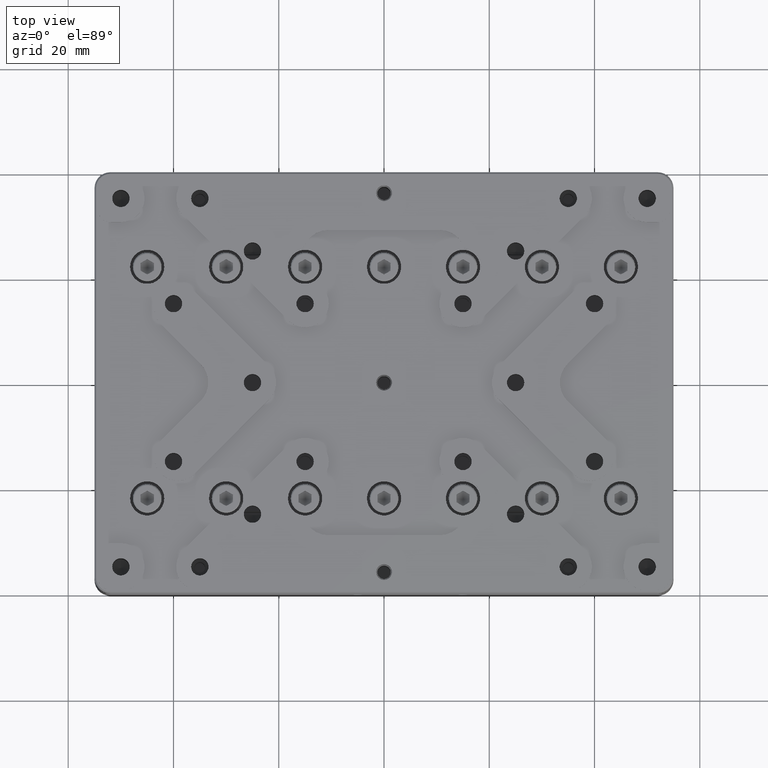
[diagram: clean part render]
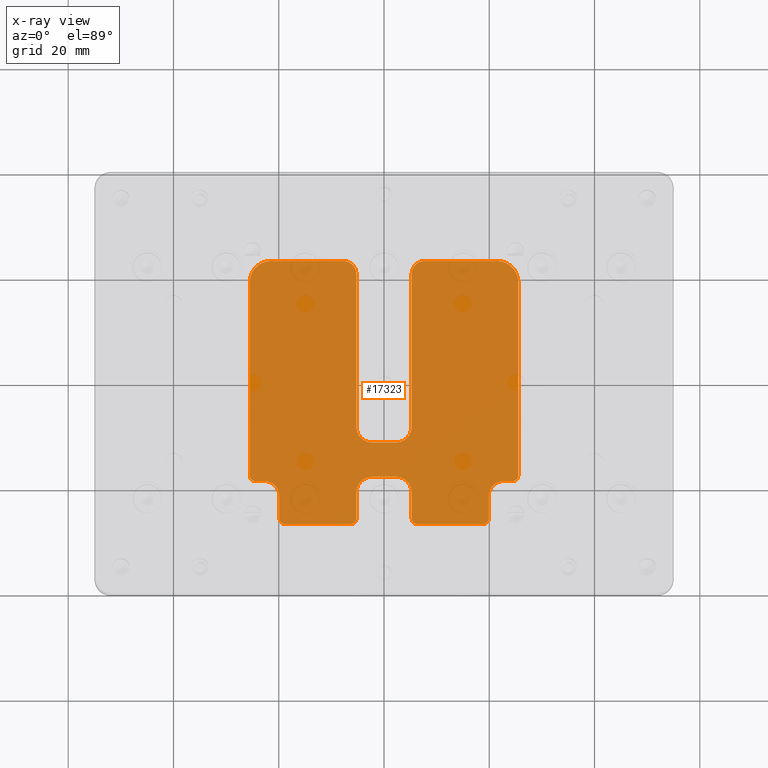
[diagram: x-ray — body ghosted, one internal face saturated and labeled with its STEP entity id]
A machine part, top view, then the same camera in x-ray: the body is ghosted and one INTERNAL B-rep face — a face not visible from any outside direction — is saturated and labeled: STEP entity #17323.
In plain terms, the highlighted planar face has unit normal (0, 0, -1).
Its self-contained STEP definition (entity closure, byte-faithful):
#14 = VERTEX_POINT ( 'NONE', #26628 ) ;
#95 = EDGE_LOOP ( 'NONE', ( #17178, #13515, #14402, #3797, #26621, #29739, #10775, #5985, #29751, #35414, #4865, #11046, #5970, #34427, #11402, #29199, #27630, #1635, #8398, #13062, #33117, #16023, #1509, #29771, #23089, #32956, #1005, #15737, #2922, #21327, #12631, #29395 ) ) ;
#544 = CIRCLE ( 'NONE', #2825, 2.499999999925873961 ) ;
#605 = CARTESIAN_POINT ( 'NONE',  ( 19.85000000499000095, -23.40000000000000213, -8.800000004990000235 ) ) ;
#763 = VERTEX_POINT ( 'NONE', #17234 ) ;
#830 = DIRECTION ( 'NONE',  ( 0.000000000000000000, -1.000000000000000000, 0.000000000000000000 ) ) ;
#892 = DIRECTION ( 'NONE',  ( -1.000000000000000000, 0.000000000000000000, 0.000000000000000000 ) ) ;
#939 = CARTESIAN_POINT ( 'NONE',  ( 5.249999994126000047, -7.999999997169498833, -8.800000005896819744 ) ) ;
#1005 = ORIENTED_EDGE ( 'NONE', *, *, #1006, .F. ) ;
#1006 = EDGE_CURVE ( 'NONE', #25009, #33300, #4394, .T. ) ;
#1093 = DIRECTION ( 'NONE',  ( 0.000000000000000000, 0.000000000000000000, -1.000000000000000000 ) ) ;
#1191 = DIRECTION ( 'NONE',  ( 1.000000000000000000, 0.000000000000000000, 0.000000000000000000 ) ) ;
#1509 = ORIENTED_EDGE ( 'NONE', *, *, #24752, .F. ) ;
#1635 = ORIENTED_EDGE ( 'NONE', *, *, #32202, .F. ) ;
#1645 = EDGE_CURVE ( 'NONE', #14754, #20276, #6559, .T. ) ;
#1854 = CARTESIAN_POINT ( 'NONE',  ( -5.249999997529470441, -25.50000000000000000, -8.800000002470540039 ) ) ;
#2037 = AXIS2_PLACEMENT_3D ( 'NONE', #15363, #26298, #9665 ) ;
#2085 = DIRECTION ( 'NONE',  ( 1.000000000000000000, 0.000000000000000000, 0.000000000000000000 ) ) ;
#2107 = VECTOR ( 'NONE', #830, 1000.000000000000000 ) ;
#2647 = EDGE_CURVE ( 'NONE', #13665, #17354, #27818, .T. ) ;
#2776 = DIRECTION ( 'NONE',  ( 0.000000000000000000, 1.000000000000000000, 0.000000000000000000 ) ) ;
#2825 = AXIS2_PLACEMENT_3D ( 'NONE', #15400, #31716, #7711 ) ;
#2922 = ORIENTED_EDGE ( 'NONE', *, *, #33479, .T. ) ;
#3027 = AXIS2_PLACEMENT_3D ( 'NONE', #7244, #20648, #31587 ) ;
#3210 = EDGE_CURVE ( 'NONE', #19127, #13665, #3487, .T. ) ;
#3394 = VERTEX_POINT ( 'NONE', #34616 ) ;
#3487 = LINE ( 'NONE', #605, #33258 ) ;
#3797 = ORIENTED_EDGE ( 'NONE', *, *, #6433, .F. ) ;
#3886 = LINE ( 'NONE', #16750, #24500 ) ;
#4392 = CARTESIAN_POINT ( 'NONE',  ( 7.750000000000000000, 23.49999999843884879, -8.799999998499579590 ) ) ;
#4394 = CIRCLE ( 'NONE', #13506, 2.499999996970019733 ) ;
#4434 = CARTESIAN_POINT ( 'NONE',  ( 0.000000000000000000, -11.00000000000000000, -8.800000000000000711 ) ) ;
#4496 = AXIS2_PLACEMENT_3D ( 'NONE', #32927, #19322, #18794 ) ;
#4580 = VECTOR ( 'NONE', #13378, 1000.000000000000000 ) ;
#4865 = ORIENTED_EDGE ( 'NONE', *, *, #21085, .F. ) ;
#5233 = CARTESIAN_POINT ( 'NONE',  ( 18.85000000010499832, -26.49999999998555111, -8.799999999961789499 ) ) ;
#5307 = VERTEX_POINT ( 'NONE', #19756 ) ;
#5833 = VERTEX_POINT ( 'NONE', #25938 ) ;
#5953 = EDGE_CURVE ( 'NONE', #23931, #18488, #9640, .T. ) ;
#5970 = ORIENTED_EDGE ( 'NONE', *, *, #16806, .T. ) ;
#5985 = ORIENTED_EDGE ( 'NONE', *, *, #11784, .F. ) ;
#6080 = EDGE_CURVE ( 'NONE', #16387, #25009, #3886, .T. ) ;
#6279 = CARTESIAN_POINT ( 'NONE',  ( -25.49999999997249844, -17.30000000010499761, -8.799999999961789499 ) ) ;
#6388 = VERTEX_POINT ( 'NONE', #13143 ) ;
#6417 = EDGE_CURVE ( 'NONE', #6944, #14481, #26799, .T. ) ;
#6433 = EDGE_CURVE ( 'NONE', #17932, #17381, #29804, .T. ) ;
#6447 = EDGE_CURVE ( 'NONE', #763, #35087, #18528, .T. ) ;
#6525 = CARTESIAN_POINT ( 'NONE',  ( 2.250000000000000000, -10.99999999704020048, -8.800000002959819767 ) ) ;
#6559 = LINE ( 'NONE', #25363, #2107 ) ;
#6690 = DIRECTION ( 'NONE',  ( -1.000000000000000000, 0.000000000000000000, 0.000000000000000000 ) ) ;
#6795 = DIRECTION ( 'NONE',  ( 0.000000000000000000, 1.000000000000000000, 0.000000000000000000 ) ) ;
#6944 = VERTEX_POINT ( 'NONE', #25106 ) ;
#7244 = CARTESIAN_POINT ( 'NONE',  ( 0.000000000000000000, 0.000000000000000000, -8.800000000000000711 ) ) ;
#7423 = CARTESIAN_POINT ( 'NONE',  ( -19.84999999997249631, -23.40000000000000213, -8.799999999972499154 ) ) ;
#7435 = DIRECTION ( 'NONE',  ( 0.000000000000000000, 0.000000000000000000, -1.000000000000000000 ) ) ;
#7711 = DIRECTION ( 'NONE',  ( -1.000000000000000000, 0.000000000000000000, 0.000000000000000000 ) ) ;
#7760 = VERTEX_POINT ( 'NONE', #30346 ) ;
#8108 = CIRCLE ( 'NONE', #30999, 2.999999995010509846 ) ;
#8129 = DIRECTION ( 'NONE',  ( -1.000000000000000000, 0.000000000000000000, 0.000000000000000000 ) ) ;
#8287 = CARTESIAN_POINT ( 'NONE',  ( 2.250000000000000000, -8.000000000000000000, -8.800000005919629942 ) ) ;
#8306 = CARTESIAN_POINT ( 'NONE',  ( -25.49999999997249844, 1.100000000000000089, -8.799999999972499154 ) ) ;
#8334 = EDGE_CURVE ( 'NONE', #19127, #5833, #15893, .T. ) ;
#8381 = DIRECTION ( 'NONE',  ( 0.000000000000000000, 0.000000000000000000, -1.000000000000000000 ) ) ;
#8398 = ORIENTED_EDGE ( 'NONE', *, *, #2647, .F. ) ;
#8449 = CIRCLE ( 'NONE', #25048, 3.999999999962255970 ) ;
#8507 = CARTESIAN_POINT ( 'NONE',  ( 5.249999997535859997, -20.50000000000000000, -8.800000002464150484 ) ) ;
#8536 = CARTESIAN_POINT ( 'NONE',  ( -12.55000000000000071, -26.49999999997250200, -8.799999999972499154 ) ) ;
#8597 = VERTEX_POINT ( 'NONE', #10698 ) ;
#8750 = CARTESIAN_POINT ( 'NONE',  ( 7.750000000000000000, 21.00000000000000000, -8.799999996995209628 ) ) ;
#8854 = DIRECTION ( 'NONE',  ( 0.000000000000000000, -1.000000000000000000, 0.000000000000000000 ) ) ;
#9270 = EDGE_CURVE ( 'NONE', #7760, #24290, #544, .T. ) ;
#9608 = EDGE_CURVE ( 'NONE', #12912, #10352, #23084, .T. ) ;
#9640 = CIRCLE ( 'NONE', #34222, 0.9999999999986339816 ) ;
#9665 = DIRECTION ( 'NONE',  ( -1.000000000000000000, 0.000000000000000000, 0.000000000000000000 ) ) ;
#9667 = AXIS2_PLACEMENT_3D ( 'NONE', #10472, #27113, #10815 ) ;
#9753 = PLANE ( 'NONE',  #3027 ) ;
#9949 = AXIS2_PLACEMENT_3D ( 'NONE', #31972, #7435, #18336 ) ;
#10233 = DIRECTION ( 'NONE',  ( 0.000000000000000000, 0.000000000000000000, -1.000000000000000000 ) ) ;
#10290 = DIRECTION ( 'NONE',  ( 1.000000000000000000, 0.000000000000000000, 0.000000000000000000 ) ) ;
#10352 = VERTEX_POINT ( 'NONE', #8507 ) ;
#10472 = CARTESIAN_POINT ( 'NONE',  ( -22.84999999999999787, -21.30000000000000071, -8.800000005010129911 ) ) ;
#10626 = DIRECTION ( 'NONE',  ( -1.000000000000000000, 0.000000000000000000, 0.000000000000000000 ) ) ;
#10666 = LINE ( 'NONE', #4434, #12621 ) ;
#10698 = CARTESIAN_POINT ( 'NONE',  ( 24.50000000010500045, -18.29999999997374971, -8.799999999971790388 ) ) ;
#10775 = ORIENTED_EDGE ( 'NONE', *, *, #6417, .T. ) ;
#10815 = DIRECTION ( 'NONE',  ( 1.000000000000000000, 0.000000000000000000, 0.000000000000000000 ) ) ;
#10870 = CARTESIAN_POINT ( 'NONE',  ( 25.49999999932555284, -17.30000000000000071, -8.799999999325539335 ) ) ;
#10874 = DIRECTION ( 'NONE',  ( 0.000000000000000000, -1.000000000000000000, 0.000000000000000000 ) ) ;
#11043 = AXIS2_PLACEMENT_3D ( 'NONE', #11233, #8381, #16243 ) ;
#11046 = ORIENTED_EDGE ( 'NONE', *, *, #1645, .F. ) ;
#11172 = VECTOR ( 'NONE', #1191, 1000.000000000000000 ) ;
#11233 = CARTESIAN_POINT ( 'NONE',  ( -21.50000000000000000, 19.50000000000000000, -8.800000000007910828 ) ) ;
#11248 = VERTEX_POINT ( 'NONE', #30765 ) ;
#11349 = CARTESIAN_POINT ( 'NONE',  ( 19.85000000247055141, -25.50000000000000000, -8.800000002470531157 ) ) ;
#11402 = ORIENTED_EDGE ( 'NONE', *, *, #29459, .T. ) ;
#11425 = DIRECTION ( 'NONE',  ( -1.000000000000000000, 0.000000000000000000, 0.000000000000000000 ) ) ;
#11784 = EDGE_CURVE ( 'NONE', #18488, #14481, #31962, .T. ) ;
#11971 = CARTESIAN_POINT ( 'NONE',  ( 5.250000000025000446, -25.50000000010499690, -8.799999999963029396 ) ) ;
#11987 = CARTESIAN_POINT ( 'NONE',  ( 21.50000000000000000, 19.50000000000000000, -8.800000000001551470 ) ) ;
#11995 = DIRECTION ( 'NONE',  ( 1.000000000000000000, -1.156482319241290528E-15, 0.000000000000000000 ) ) ;
#12199 = VECTOR ( 'NONE', #6690, 1000.000000000000000 ) ;
#12244 = DIRECTION ( 'NONE',  ( 0.000000000000000000, 1.000000000000000000, 0.000000000000000000 ) ) ;
#12505 = CARTESIAN_POINT ( 'NONE',  ( -2.250000000000000000, -20.50000000000000000, -8.800000004953290045 ) ) ;
#12621 = VECTOR ( 'NONE', #32519, 1000.000000000000000 ) ;
#12631 = ORIENTED_EDGE ( 'NONE', *, *, #32254, .T. ) ;
#12840 = CARTESIAN_POINT ( 'NONE',  ( 24.50000000000000000, -17.30000000000000071, -8.799999999951069185 ) ) ;
#12912 = VERTEX_POINT ( 'NONE', #11971 ) ;
#13062 = ORIENTED_EDGE ( 'NONE', *, *, #3210, .F. ) ;
#13143 = CARTESIAN_POINT ( 'NONE',  ( 25.49999999868060030, 19.49999998739999896, -8.799999999351030056 ) ) ;
#13148 = EDGE_CURVE ( 'NONE', #3394, #23931, #16573, .T. ) ;
#13198 = CARTESIAN_POINT ( 'NONE',  ( 0.000000000000000000, -18.29999999997000160, -8.800000000000000711 ) ) ;
#13359 = DIRECTION ( 'NONE',  ( -1.000000000000000000, 0.000000000000000000, 0.000000000000000000 ) ) ;
#13363 = EDGE_CURVE ( 'NONE', #15348, #7760, #22868, .T. ) ;
#13378 = DIRECTION ( 'NONE',  ( -1.000000000000000000, 0.000000000000000000, 0.000000000000000000 ) ) ;
#13379 = VECTOR ( 'NONE', #12244, 1000.000000000000000 ) ;
#13506 = AXIS2_PLACEMENT_3D ( 'NONE', #8750, #30793, #11425 ) ;
#13515 = ORIENTED_EDGE ( 'NONE', *, *, #13363, .F. ) ;
#13550 = VERTEX_POINT ( 'NONE', #26594 ) ;
#13665 = VERTEX_POINT ( 'NONE', #11349 ) ;
#13920 = AXIS2_PLACEMENT_3D ( 'NONE', #20352, #16772, #17494 ) ;
#14402 = ORIENTED_EDGE ( 'NONE', *, *, #32528, .F. ) ;
#14481 = VERTEX_POINT ( 'NONE', #19490 ) ;
#14484 = DIRECTION ( 'NONE',  ( 0.000000000000000000, 0.000000000000000000, -1.000000000000000000 ) ) ;
#14489 = DIRECTION ( 'NONE',  ( 1.000000000000000000, 0.000000000000000000, 0.000000000000000000 ) ) ;
#14754 = VERTEX_POINT ( 'NONE', #16995 ) ;
#15004 = CIRCLE ( 'NONE', #31591, 2.999999994169229911 ) ;
#15072 = VERTEX_POINT ( 'NONE', #6525 ) ;
#15348 = VERTEX_POINT ( 'NONE', #22416 ) ;
#15363 = CARTESIAN_POINT ( 'NONE',  ( -6.250000000000000000, -25.50000000000000000, -8.799999999951069185 ) ) ;
#15400 = CARTESIAN_POINT ( 'NONE',  ( -7.750000000000000000, 21.00000000000000000, -8.799999999951069185 ) ) ;
#15564 = CARTESIAN_POINT ( 'NONE',  ( 18.84999999999999787, -25.50000000000000000, -8.799999999951069185 ) ) ;
#15737 = ORIENTED_EDGE ( 'NONE', *, *, #6080, .F. ) ;
#15855 = AXIS2_PLACEMENT_3D ( 'NONE', #12505, #20043, #34351 ) ;
#15893 = CIRCLE ( 'NONE', #4496, 2.999999995037069933 ) ;
#15921 = VECTOR ( 'NONE', #2776, 1000.000000000000000 ) ;
#15964 = EDGE_CURVE ( 'NONE', #13550, #6388, #8449, .T. ) ;
#15979 = CARTESIAN_POINT ( 'NONE',  ( -25.49999999999020162, 19.50000000000000000, -8.799999999990209432 ) ) ;
#16023 = ORIENTED_EDGE ( 'NONE', *, *, #27851, .F. ) ;
#16243 = DIRECTION ( 'NONE',  ( -1.000000000000000000, 0.000000000000000000, 0.000000000000000000 ) ) ;
#16387 = VERTEX_POINT ( 'NONE', #939 ) ;
#16507 = EDGE_CURVE ( 'NONE', #24290, #11248, #32071, .T. ) ;
#16573 = LINE ( 'NONE', #8536, #20392 ) ;
#16750 = CARTESIAN_POINT ( 'NONE',  ( 5.249999994126000047, 6.500000000000000000, -8.800000005873998887 ) ) ;
#16772 = DIRECTION ( 'NONE',  ( 0.000000000000000000, 0.000000000000000000, -1.000000000000000000 ) ) ;
#16806 = EDGE_CURVE ( 'NONE', #14754, #35087, #29055, .T. ) ;
#16995 = CARTESIAN_POINT ( 'NONE',  ( -5.249999995010000475, -20.50000003353499878, -8.800000004971650469 ) ) ;
#17178 = ORIENTED_EDGE ( 'NONE', *, *, #9270, .F. ) ;
#17234 = CARTESIAN_POINT ( 'NONE',  ( 2.249999966464499845, -17.50000000499000308, -8.800000004971639811 ) ) ;
#17323 = ADVANCED_FACE ( 'NONE', ( #34281 ), #9753, .F. ) ;
#17354 = VERTEX_POINT ( 'NONE', #5233 ) ;
#17381 = VERTEX_POINT ( 'NONE', #15979 ) ;
#17494 = DIRECTION ( 'NONE',  ( -1.000000000000000000, 0.000000000000000000, 0.000000000000000000 ) ) ;
#17837 = VECTOR ( 'NONE', #6795, 1000.000000000000000 ) ;
#17899 = VERTEX_POINT ( 'NONE', #34765 ) ;
#17904 = AXIS2_PLACEMENT_3D ( 'NONE', #12840, #23782, #34707 ) ;
#17932 = VERTEX_POINT ( 'NONE', #6279 ) ;
#18336 = DIRECTION ( 'NONE',  ( -1.000000000000000000, 0.000000000000000000, 0.000000000000000000 ) ) ;
#18448 = CARTESIAN_POINT ( 'NONE',  ( -5.250000002961999535, 6.500000000000000000, -8.799999997038000288 ) ) ;
#18488 = VERTEX_POINT ( 'NONE', #19646 ) ;
#18489 = VECTOR ( 'NONE', #10874, 1000.000000000000000 ) ;
#18528 = LINE ( 'NONE', #29474, #29679 ) ;
#18794 = DIRECTION ( 'NONE',  ( 1.000000000000000000, 0.000000000000000000, 0.000000000000000000 ) ) ;
#18854 = LINE ( 'NONE', #21546, #32166 ) ;
#19127 = VERTEX_POINT ( 'NONE', #32600 ) ;
#19322 = DIRECTION ( 'NONE',  ( 0.000000000000000000, 0.000000000000000000, -1.000000000000000000 ) ) ;
#19490 = CARTESIAN_POINT ( 'NONE',  ( -19.85000000249129926, -21.30000000000000071, -8.800000002491309203 ) ) ;
#19646 = CARTESIAN_POINT ( 'NONE',  ( -19.84999999997249631, -25.50000000010499690, -8.799999999961778840 ) ) ;
#19756 = CARTESIAN_POINT ( 'NONE',  ( -24.50000000000000000, -18.30000000251159875, -8.799999999951069185 ) ) ;
#19882 = DIRECTION ( 'NONE',  ( 0.000000000000000000, 0.000000000000000000, -1.000000000000000000 ) ) ;
#20043 = DIRECTION ( 'NONE',  ( 0.000000000000000000, 0.000000000000000000, -1.000000000000000000 ) ) ;
#20276 = VERTEX_POINT ( 'NONE', #1854 ) ;
#20352 = CARTESIAN_POINT ( 'NONE',  ( 6.250000000000000000, -25.50000000000000000, -8.799999999951069185 ) ) ;
#20392 = VECTOR ( 'NONE', #30569, 1000.000000000000000 ) ;
#20519 = CARTESIAN_POINT ( 'NONE',  ( 5.249999998565390236, 20.99999998896999642, -8.799999996995209628 ) ) ;
#20648 = DIRECTION ( 'NONE',  ( 0.000000000000000000, 0.000000000000000000, -1.000000000000000000 ) ) ;
#21057 = LINE ( 'NONE', #31992, #28893 ) ;
#21085 = EDGE_CURVE ( 'NONE', #20276, #3394, #27747, .T. ) ;
#21131 = DIRECTION ( 'NONE',  ( -1.000000000000000000, 0.000000000000000000, 0.000000000000000000 ) ) ;
#21327 = ORIENTED_EDGE ( 'NONE', *, *, #28856, .F. ) ;
#21546 = CARTESIAN_POINT ( 'NONE',  ( 0.000000000000000000, -18.30000000499000024, -8.800000000000000711 ) ) ;
#21956 = DIRECTION ( 'NONE',  ( 0.000000000000000000, 0.000000000000000000, -1.000000000000000000 ) ) ;
#21975 = LINE ( 'NONE', #27365, #18489 ) ;
#22416 = CARTESIAN_POINT ( 'NONE',  ( -21.49999998740000251, 23.49999999868059675, -8.799999999354209734 ) ) ;
#22513 = AXIS2_PLACEMENT_3D ( 'NONE', #30277, #19882, #14489 ) ;
#22542 = CIRCLE ( 'NONE', #9949, 1.000000000010641710 ) ;
#22868 = LINE ( 'NONE', #28947, #11172 ) ;
#23084 = LINE ( 'NONE', #34000, #17837 ) ;
#23089 = ORIENTED_EDGE ( 'NONE', *, *, #15964, .F. ) ;
#23782 = DIRECTION ( 'NONE',  ( 0.000000000000000000, 0.000000000000000000, -1.000000000000000000 ) ) ;
#23931 = VERTEX_POINT ( 'NONE', #33973 ) ;
#24290 = VERTEX_POINT ( 'NONE', #34081 ) ;
#24500 = VECTOR ( 'NONE', #25719, 1000.000000000000000 ) ;
#24752 = EDGE_CURVE ( 'NONE', #27875, #8597, #34502, .T. ) ;
#25009 = VERTEX_POINT ( 'NONE', #20519 ) ;
#25048 = AXIS2_PLACEMENT_3D ( 'NONE', #11987, #14484, #892 ) ;
#25106 = CARTESIAN_POINT ( 'NONE',  ( -22.85000003353500020, -18.30000000499000024, -8.800000002505070640 ) ) ;
#25363 = CARTESIAN_POINT ( 'NONE',  ( -5.249999995010000475, -23.00000000000000000, -8.800000004990000235 ) ) ;
#25719 = DIRECTION ( 'NONE',  ( 0.000000000000000000, 1.000000000000000000, 0.000000000000000000 ) ) ;
#25938 = CARTESIAN_POINT ( 'NONE',  ( 22.84999999999999787, -18.30000000246069902, -8.800000002507051278 ) ) ;
#25939 = CIRCLE ( 'NONE', #11043, 3.999999999968625986 ) ;
#26202 = VECTOR ( 'NONE', #34757, 1000.000000000000000 ) ;
#26298 = DIRECTION ( 'NONE',  ( 0.000000000000000000, 0.000000000000000000, -1.000000000000000000 ) ) ;
#26367 = EDGE_CURVE ( 'NONE', #33300, #13550, #21057, .T. ) ;
#26594 = CARTESIAN_POINT ( 'NONE',  ( 21.50000000000000000, 23.49999999998429701, -8.800000000016961366 ) ) ;
#26621 = ORIENTED_EDGE ( 'NONE', *, *, #34697, .F. ) ;
#26628 = CARTESIAN_POINT ( 'NONE',  ( 6.250000000000000000, -26.49999999996180122, -8.799999999961789499 ) ) ;
#26799 = CIRCLE ( 'NONE', #9667, 2.999999995037069933 ) ;
#26812 = CARTESIAN_POINT ( 'NONE',  ( -18.84999999999999787, -25.50000000000000000, -8.799999999951069185 ) ) ;
#27113 = DIRECTION ( 'NONE',  ( 0.000000000000000000, 0.000000000000000000, -1.000000000000000000 ) ) ;
#27365 = CARTESIAN_POINT ( 'NONE',  ( 25.49999999870000167, 1.100000000000000089, -8.799999998700000603 ) ) ;
#27630 = ORIENTED_EDGE ( 'NONE', *, *, #32784, .F. ) ;
#27747 = CIRCLE ( 'NONE', #2037, 0.9999999999986339816 ) ;
#27818 = CIRCLE ( 'NONE', #30688, 0.9999999999986339816 ) ;
#27851 = EDGE_CURVE ( 'NONE', #8597, #5833, #35239, .T. ) ;
#27875 = VERTEX_POINT ( 'NONE', #10870 ) ;
#28815 = CIRCLE ( 'NONE', #22513, 3.000000000024100277 ) ;
#28856 = EDGE_CURVE ( 'NONE', #17899, #15072, #10666, .T. ) ;
#28893 = VECTOR ( 'NONE', #2085, 1000.000000000000000 ) ;
#28947 = CARTESIAN_POINT ( 'NONE',  ( -14.62500000000000000, 23.49999999869999812, -8.799999998700000603 ) ) ;
#29055 = CIRCLE ( 'NONE', #15855, 2.999999995010509846 ) ;
#29199 = ORIENTED_EDGE ( 'NONE', *, *, #9608, .F. ) ;
#29395 = ORIENTED_EDGE ( 'NONE', *, *, #16507, .F. ) ;
#29403 = CIRCLE ( 'NONE', #13920, 0.9999999999986339816 ) ;
#29459 = EDGE_CURVE ( 'NONE', #763, #10352, #8108, .T. ) ;
#29474 = CARTESIAN_POINT ( 'NONE',  ( 0.000000000000000000, -17.50000000499000308, -8.800000004990000235 ) ) ;
#29679 = VECTOR ( 'NONE', #8129, 1000.000000000000000 ) ;
#29739 = ORIENTED_EDGE ( 'NONE', *, *, #33398, .F. ) ;
#29751 = ORIENTED_EDGE ( 'NONE', *, *, #5953, .F. ) ;
#29771 = ORIENTED_EDGE ( 'NONE', *, *, #32603, .F. ) ;
#29804 = LINE ( 'NONE', #8306, #15921 ) ;
#30277 = CARTESIAN_POINT ( 'NONE',  ( -2.250000000000000000, -8.000000000000000000, -8.800000000007910828 ) ) ;
#30346 = CARTESIAN_POINT ( 'NONE',  ( -7.750000000000000000, 23.49999999932554928, -8.799999999325539335 ) ) ;
#30569 = DIRECTION ( 'NONE',  ( -1.000000000000000000, 0.000000000000000000, 0.000000000000000000 ) ) ;
#30688 = AXIS2_PLACEMENT_3D ( 'NONE', #15564, #10233, #21131 ) ;
#30765 = CARTESIAN_POINT ( 'NONE',  ( -5.250000001477050482, -8.000000000000000000, -8.799999998522959999 ) ) ;
#30793 = DIRECTION ( 'NONE',  ( 0.000000000000000000, 0.000000000000000000, -1.000000000000000000 ) ) ;
#30999 = AXIS2_PLACEMENT_3D ( 'NONE', #34544, #1093, #11995 ) ;
#31587 = DIRECTION ( 'NONE',  ( 0.000000000000000000, -1.000000000000000000, 0.000000000000000000 ) ) ;
#31591 = AXIS2_PLACEMENT_3D ( 'NONE', #8287, #34812, #10290 ) ;
#31716 = DIRECTION ( 'NONE',  ( 0.000000000000000000, 0.000000000000000000, -1.000000000000000000 ) ) ;
#31962 = LINE ( 'NONE', #7423, #13379 ) ;
#31972 = CARTESIAN_POINT ( 'NONE',  ( -24.50000000000000000, -17.30000000000000071, -8.799999999951069185 ) ) ;
#31992 = CARTESIAN_POINT ( 'NONE',  ( 14.62500000000000000, 23.50000000000000000, -8.800000000000000711 ) ) ;
#32071 = LINE ( 'NONE', #18448, #26202 ) ;
#32166 = VECTOR ( 'NONE', #10626, 1000.000000000000000 ) ;
#32202 = EDGE_CURVE ( 'NONE', #17354, #14, #33893, .T. ) ;
#32254 = EDGE_CURVE ( 'NONE', #17899, #11248, #28815, .T. ) ;
#32519 = DIRECTION ( 'NONE',  ( 1.000000000000000000, 0.000000000000000000, 0.000000000000000000 ) ) ;
#32528 = EDGE_CURVE ( 'NONE', #17381, #15348, #25939, .T. ) ;
#32600 = CARTESIAN_POINT ( 'NONE',  ( 19.85000000497645090, -21.30000003353499594, -8.800000005010129911 ) ) ;
#32603 = EDGE_CURVE ( 'NONE', #6388, #27875, #21975, .T. ) ;
#32784 = EDGE_CURVE ( 'NONE', #14, #12912, #29403, .T. ) ;
#32927 = CARTESIAN_POINT ( 'NONE',  ( 22.84999999999999787, -21.30000000000000071, -8.800000005010129911 ) ) ;
#32956 = ORIENTED_EDGE ( 'NONE', *, *, #26367, .F. ) ;
#33117 = ORIENTED_EDGE ( 'NONE', *, *, #8334, .T. ) ;
#33258 = VECTOR ( 'NONE', #8854, 1000.000000000000000 ) ;
#33300 = VERTEX_POINT ( 'NONE', #4392 ) ;
#33398 = EDGE_CURVE ( 'NONE', #6944, #5307, #18854, .T. ) ;
#33479 = EDGE_CURVE ( 'NONE', #16387, #15072, #15004, .T. ) ;
#33893 = LINE ( 'NONE', #34075, #12199 ) ;
#33973 = CARTESIAN_POINT ( 'NONE',  ( -18.84999999999999787, -26.49999999996180122, -8.799999999961789499 ) ) ;
#34000 = CARTESIAN_POINT ( 'NONE',  ( 5.250000000025000446, -23.00000000000000000, -8.799999999975000264 ) ) ;
#34069 = CARTESIAN_POINT ( 'NONE',  ( -2.250000000000000000, -17.50000000497165331, -8.800000004971639811 ) ) ;
#34075 = CARTESIAN_POINT ( 'NONE',  ( 12.55000000000000071, -26.49999999997250200, -8.799999999972499154 ) ) ;
#34081 = CARTESIAN_POINT ( 'NONE',  ( -5.250000002995990123, 20.99999998896999642, -8.799999998473140295 ) ) ;
#34222 = AXIS2_PLACEMENT_3D ( 'NONE', #26812, #21956, #13359 ) ;
#34281 = FACE_OUTER_BOUND ( 'NONE', #95, .T. ) ;
#34351 = DIRECTION ( 'NONE',  ( 1.000000000000000000, -1.156482319241290528E-15, 0.000000000000000000 ) ) ;
#34427 = ORIENTED_EDGE ( 'NONE', *, *, #6447, .F. ) ;
#34502 = CIRCLE ( 'NONE', #17904, 1.000000000010641710 ) ;
#34544 = CARTESIAN_POINT ( 'NONE',  ( 2.250000000000000000, -20.50000000000000000, -8.800000004953290045 ) ) ;
#34616 = CARTESIAN_POINT ( 'NONE',  ( -6.249999999894000347, -26.49999999998555111, -8.799999999961789499 ) ) ;
#34697 = EDGE_CURVE ( 'NONE', #5307, #17932, #22542, .T. ) ;
#34707 = DIRECTION ( 'NONE',  ( -1.000000000000000000, 0.000000000000000000, 0.000000000000000000 ) ) ;
#34757 = DIRECTION ( 'NONE',  ( 0.000000000000000000, -1.000000000000000000, 0.000000000000000000 ) ) ;
#34765 = CARTESIAN_POINT ( 'NONE',  ( -2.250000000000000000, -11.00000000002135891, -8.800000000007910828 ) ) ;
#34812 = DIRECTION ( 'NONE',  ( 0.000000000000000000, 0.000000000000000000, -1.000000000000000000 ) ) ;
#35087 = VERTEX_POINT ( 'NONE', #34069 ) ;
#35239 = LINE ( 'NONE', #13198, #4580 ) ;
#35414 = ORIENTED_EDGE ( 'NONE', *, *, #13148, .F. ) ;